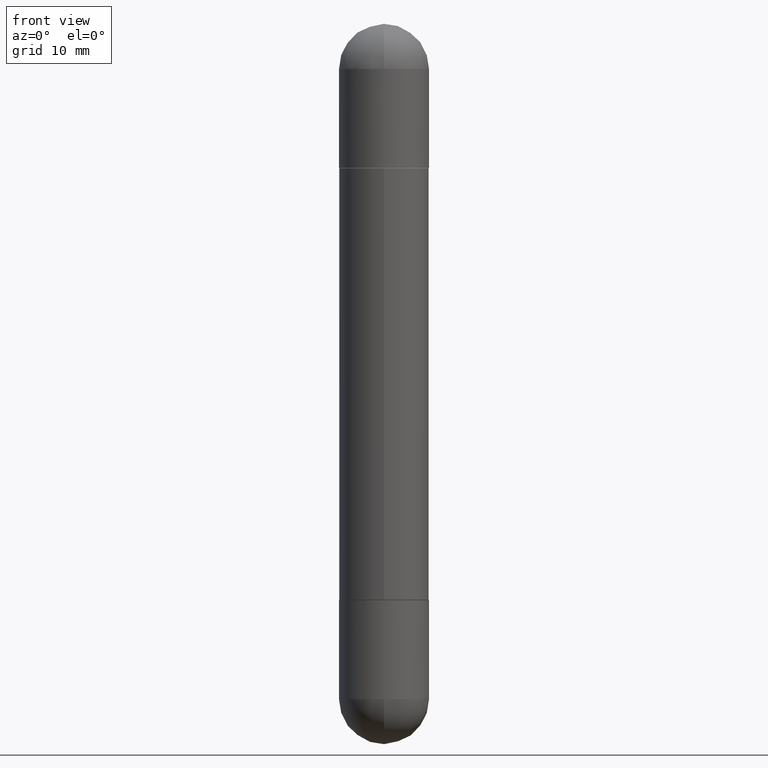
[diagram: clean part render]
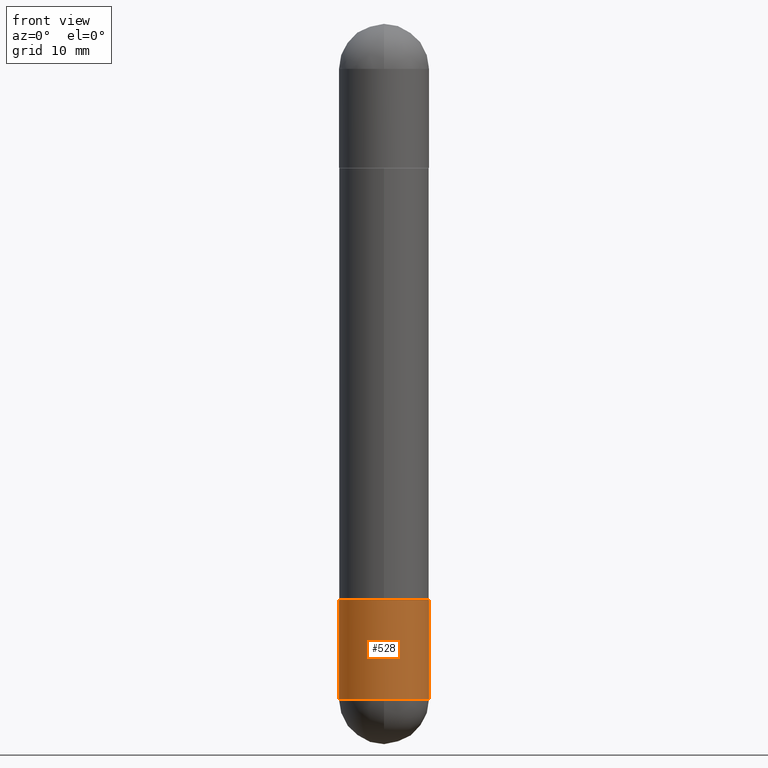
[diagram: same view with one face highlighted and labeled with its STEP entity id]
A machine part, front view. The second image highlights one B-rep face of the part: STEP entity #528.
In plain terms, the highlighted cylindrical surface (partial cylindrical patch) has radius 3.9688 mm, axis along (-0, 0, 1).
Its self-contained STEP definition (entity closure, byte-faithful):
#16 = CARTESIAN_POINT ( 'NONE',  ( 0.1562500000000000000, -8.674148951188436448E-15, -2.343750000000000000 ) ) ;
#18 = CIRCLE ( 'NONE', #198, 0.1562500000000000000 ) ;
#28 = CARTESIAN_POINT ( 'NONE',  ( -1.110223024625101517E-15, -0.1562500000000085487, -2.343749999999999556 ) ) ;
#33 = CARTESIAN_POINT ( 'NONE',  ( 0.1562500000000000000, -1.091087918388479174E-15, 7.619026212181150377E-30 ) ) ;
#108 = ORIENTED_EDGE ( 'NONE', *, *, #446, .T. ) ;
#109 = CARTESIAN_POINT ( 'NONE',  ( 0.000000000000000000, 0.000000000000000000, 0.000000000000000000 ) ) ;
#143 = AXIS2_PLACEMENT_3D ( 'NONE', #109, #668, #240 ) ;
#178 = VERTEX_POINT ( 'NONE', #28 ) ;
#184 = VECTOR ( 'NONE', #728, 39.37007874015748143 ) ;
#198 = AXIS2_PLACEMENT_3D ( 'NONE', #355, #347, #418 ) ;
#207 = DIRECTION ( 'NONE',  ( -2.445468806185136597E-29, 3.491481338843145583E-15, 1.000000000000000000 ) ) ;
#214 = VERTEX_POINT ( 'NONE', #462 ) ;
#236 = ORIENTED_EDGE ( 'NONE', *, *, #681, .T. ) ;
#238 = ORIENTED_EDGE ( 'NONE', *, *, #358, .F. ) ;
#240 = DIRECTION ( 'NONE',  ( 1.000000000000000000, -6.982962677686266711E-15, 4.876176775795936353E-29 ) ) ;
#241 = VERTEX_POINT ( 'NONE', #16 ) ;
#247 = EDGE_LOOP ( 'NONE', ( #238, #236, #108, #487, #602 ) ) ;
#278 = CARTESIAN_POINT ( 'NONE',  ( 0.1562500000000000000, -8.074050596074770339E-15, -2.000000000000000000 ) ) ;
#280 = LINE ( 'NONE', #472, #571 ) ;
#301 = CARTESIAN_POINT ( 'NONE',  ( 4.890937612370273194E-29, -6.982962677686291165E-15, -2.000000000000000000 ) ) ;
#333 = CIRCLE ( 'NONE', #406, 0.1562500000000000000 ) ;
#347 = DIRECTION ( 'NONE',  ( -2.445468806185136597E-29, 3.491481338843145583E-15, 1.000000000000000000 ) ) ;
#355 = CARTESIAN_POINT ( 'NONE',  ( 5.731567514496413899E-29, -8.183159387913622595E-15, -2.343750000000000000 ) ) ;
#358 = EDGE_CURVE ( 'NONE', #509, #214, #280, .T. ) ;
#392 = CIRCLE ( 'NONE', #610, 0.1562500000000000000 ) ;
#402 = EDGE_CURVE ( 'NONE', #214, #805, #392, .T. ) ;
#406 = AXIS2_PLACEMENT_3D ( 'NONE', #762, #207, #453 ) ;
#418 = DIRECTION ( 'NONE',  ( 1.000000000000000000, -6.982962677686262766E-15, 0.000000000000000000 ) ) ;
#430 = FACE_OUTER_BOUND ( 'NONE', #247, .T. ) ;
#438 = DIRECTION ( 'NONE',  ( -2.445468806185136597E-29, 3.491481338843145583E-15, 1.000000000000000000 ) ) ;
#446 = EDGE_CURVE ( 'NONE', #178, #241, #18, .T. ) ;
#453 = DIRECTION ( 'NONE',  ( 1.000000000000000000, -6.982962677686262766E-15, 0.000000000000000000 ) ) ;
#459 = EDGE_CURVE ( 'NONE', #241, #805, #596, .T. ) ;
#462 = CARTESIAN_POINT ( 'NONE',  ( -0.1562500000000000000, -6.472838008174799945E-15, -2.000000000000000000 ) ) ;
#472 = CARTESIAN_POINT ( 'NONE',  ( -0.1562500000000000000, 1.110223024625156540E-15, -7.685836078523291160E-30 ) ) ;
#476 = DIRECTION ( 'NONE',  ( 1.000000000000000000, -6.982962677686269077E-15, 0.000000000000000000 ) ) ;
#487 = ORIENTED_EDGE ( 'NONE', *, *, #459, .T. ) ;
#509 = VERTEX_POINT ( 'NONE', #734 ) ;
#528 = ADVANCED_FACE ( 'NONE', ( #430 ), #738, .T. ) ;
#571 = VECTOR ( 'NONE', #721, 39.37007874015748143 ) ;
#596 = LINE ( 'NONE', #33, #184 ) ;
#602 = ORIENTED_EDGE ( 'NONE', *, *, #402, .F. ) ;
#610 = AXIS2_PLACEMENT_3D ( 'NONE', #301, #438, #476 ) ;
#668 = DIRECTION ( 'NONE',  ( -2.445468806185136597E-29, 3.491481338843145583E-15, 1.000000000000000000 ) ) ;
#681 = EDGE_CURVE ( 'NONE', #509, #178, #333, .T. ) ;
#721 = DIRECTION ( 'NONE',  ( -2.445468806185136877E-29, 3.491481338843145188E-15, 1.000000000000000000 ) ) ;
#728 = DIRECTION ( 'NONE',  ( -2.445468806185136877E-29, 3.491481338843145188E-15, 1.000000000000000000 ) ) ;
#734 = CARTESIAN_POINT ( 'NONE',  ( -0.1562500000000000000, -6.472838008174800734E-15, -2.343750000000000000 ) ) ;
#738 = CYLINDRICAL_SURFACE ( 'NONE', #143, 0.1562500000000000000 ) ;
#762 = CARTESIAN_POINT ( 'NONE',  ( 5.731567514496413899E-29, -8.183159387913622595E-15, -2.343750000000000000 ) ) ;
#805 = VERTEX_POINT ( 'NONE', #278 ) ;